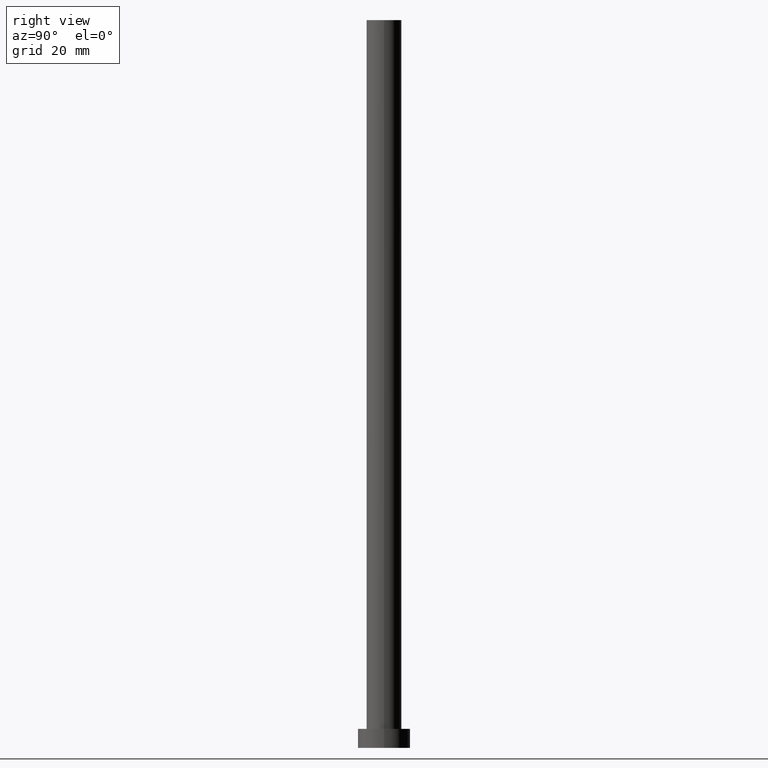
[diagram: clean part render]
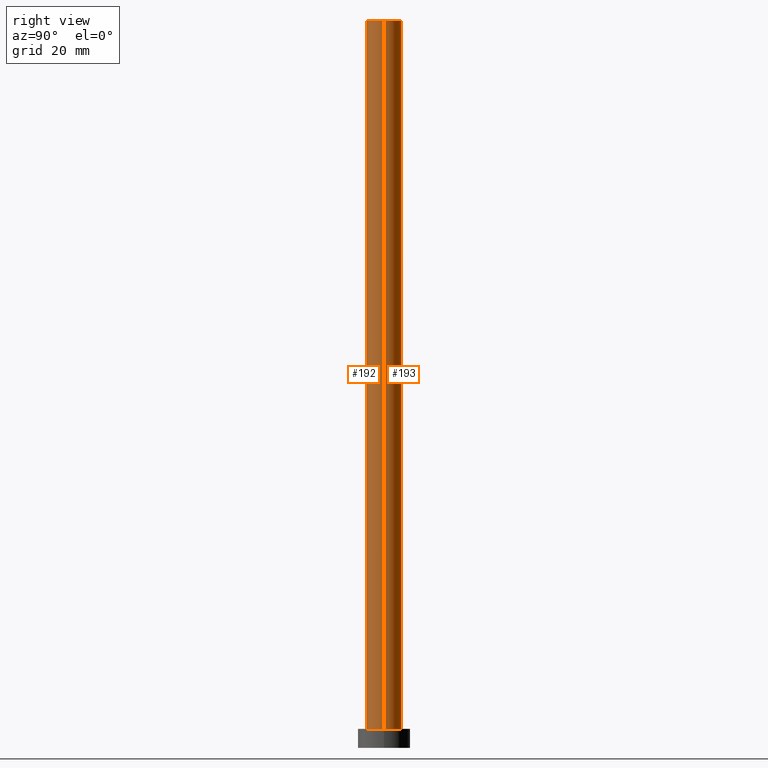
[diagram: same view with one multi-face feature highlighted, each face labeled with its STEP entity id]
A machine part, right view. The highlighted faces form ONE feature: a constant-radius fillet chain: 2 tangent blend faces with common blend radius 6 mm. The faces share edges in the B-rep.
Their STEP definitions:
[1] entity #193 (Cylinder):
#15 = CARTESIAN_POINT ( 'NONE',  ( 0.000000000000000000, 0.000000000000000000, 250.0000000000000000 ) ) ;
#17 = ORIENTED_EDGE ( 'NONE', *, *, #96, .T. ) ;
#22 = CIRCLE ( 'NONE', #196, 6.000000000000000888 ) ;
#35 = FACE_OUTER_BOUND ( 'NONE', #70, .T. ) ;
#37 = LINE ( 'NONE', #195, #112 ) ;
#44 = ORIENTED_EDGE ( 'NONE', *, *, #232, .F. ) ;
#54 = AXIS2_PLACEMENT_3D ( 'NONE', #15, #150, #236 ) ;
#67 = AXIS2_PLACEMENT_3D ( 'NONE', #71, #231, #92 ) ;
#70 = EDGE_LOOP ( 'NONE', ( #44, #219, #17, #168 ) ) ;
#71 = CARTESIAN_POINT ( 'NONE',  ( 0.000000000000000000, 0.000000000000000000, 6.500000000000000000 ) ) ;
#80 = DIRECTION ( 'NONE',  ( 1.000000000000000000, 0.000000000000000000, 0.000000000000000000 ) ) ;
#85 = CARTESIAN_POINT ( 'NONE',  ( 0.000000000000000000, 0.000000000000000000, 250.0000000000000000 ) ) ;
#90 = VERTEX_POINT ( 'NONE', #226 ) ;
#92 = DIRECTION ( 'NONE',  ( 1.000000000000000000, 0.000000000000000000, 0.000000000000000000 ) ) ;
#94 = DIRECTION ( 'NONE',  ( -0.000000000000000000, -0.000000000000000000, -1.000000000000000000 ) ) ;
#96 = EDGE_CURVE ( 'NONE', #225, #90, #179, .T. ) ;
#97 = CARTESIAN_POINT ( 'NONE',  ( 6.000000000000000888, 7.347880794884120722E-16, 6.500000000000000000 ) ) ;
#108 = VERTEX_POINT ( 'NONE', #162 ) ;
#112 = VECTOR ( 'NONE', #94, 1000.000000000000000 ) ;
#113 = CYLINDRICAL_SURFACE ( 'NONE', #54, 6.000000000000000888 ) ;
#150 = DIRECTION ( 'NONE',  ( -0.000000000000000000, -0.000000000000000000, -1.000000000000000000 ) ) ;
#153 = DIRECTION ( 'NONE',  ( 0.000000000000000000, 0.000000000000000000, 1.000000000000000000 ) ) ;
#162 = CARTESIAN_POINT ( 'NONE',  ( -6.000000000000000888, 0.000000000000000000, 250.0000000000000000 ) ) ;
#168 = ORIENTED_EDGE ( 'NONE', *, *, #240, .F. ) ;
#172 = LINE ( 'NONE', #251, #201 ) ;
#179 = CIRCLE ( 'NONE', #67, 6.000000000000000888 ) ;
#183 = EDGE_CURVE ( 'NONE', #241, #225, #172, .T. ) ;
#189 = CARTESIAN_POINT ( 'NONE',  ( 6.000000000000000888, 7.347880794884120722E-16, 250.0000000000000000 ) ) ;
#193 = ADVANCED_FACE ( 'NONE', ( #35 ), #113, .T. ) ;
#195 = CARTESIAN_POINT ( 'NONE',  ( -6.000000000000000888, 0.000000000000000000, 250.0000000000000000 ) ) ;
#196 = AXIS2_PLACEMENT_3D ( 'NONE', #85, #153, #80 ) ;
#201 = VECTOR ( 'NONE', #253, 1000.000000000000000 ) ;
#219 = ORIENTED_EDGE ( 'NONE', *, *, #183, .T. ) ;
#225 = VERTEX_POINT ( 'NONE', #97 ) ;
#226 = CARTESIAN_POINT ( 'NONE',  ( -6.000000000000000888, 0.000000000000000000, 6.500000000000000000 ) ) ;
#231 = DIRECTION ( 'NONE',  ( 0.000000000000000000, 0.000000000000000000, 1.000000000000000000 ) ) ;
#232 = EDGE_CURVE ( 'NONE', #241, #108, #22, .T. ) ;
#236 = DIRECTION ( 'NONE',  ( -1.000000000000000000, 0.000000000000000000, 0.000000000000000000 ) ) ;
#240 = EDGE_CURVE ( 'NONE', #108, #90, #37, .T. ) ;
#241 = VERTEX_POINT ( 'NONE', #189 ) ;
#251 = CARTESIAN_POINT ( 'NONE',  ( 6.000000000000000888, 7.347880794884120722E-16, 250.0000000000000000 ) ) ;
#253 = DIRECTION ( 'NONE',  ( -0.000000000000000000, -0.000000000000000000, -1.000000000000000000 ) ) ;
[2] entity #192 (Cylinder):
#33 = DIRECTION ( 'NONE',  ( -1.000000000000000000, 0.000000000000000000, 0.000000000000000000 ) ) ;
#37 = LINE ( 'NONE', #195, #112 ) ;
#38 = CIRCLE ( 'NONE', #115, 6.000000000000000888 ) ;
#60 = EDGE_CURVE ( 'NONE', #108, #241, #121, .T. ) ;
#77 = DIRECTION ( 'NONE',  ( 1.000000000000000000, 0.000000000000000000, 0.000000000000000000 ) ) ;
#78 = ORIENTED_EDGE ( 'NONE', *, *, #60, .F. ) ;
#84 = DIRECTION ( 'NONE',  ( 1.000000000000000000, 0.000000000000000000, 0.000000000000000000 ) ) ;
#90 = VERTEX_POINT ( 'NONE', #226 ) ;
#94 = DIRECTION ( 'NONE',  ( -0.000000000000000000, -0.000000000000000000, -1.000000000000000000 ) ) ;
#97 = CARTESIAN_POINT ( 'NONE',  ( 6.000000000000000888, 7.347880794884120722E-16, 6.500000000000000000 ) ) ;
#104 = DIRECTION ( 'NONE',  ( 0.000000000000000000, 0.000000000000000000, 1.000000000000000000 ) ) ;
#108 = VERTEX_POINT ( 'NONE', #162 ) ;
#110 = ORIENTED_EDGE ( 'NONE', *, *, #254, .T. ) ;
#112 = VECTOR ( 'NONE', #94, 1000.000000000000000 ) ;
#115 = AXIS2_PLACEMENT_3D ( 'NONE', #191, #173, #84 ) ;
#121 = CIRCLE ( 'NONE', #154, 6.000000000000000888 ) ;
#131 = DIRECTION ( 'NONE',  ( -0.000000000000000000, -0.000000000000000000, -1.000000000000000000 ) ) ;
#133 = AXIS2_PLACEMENT_3D ( 'NONE', #252, #131, #33 ) ;
#134 = EDGE_LOOP ( 'NONE', ( #202, #78, #149, #110 ) ) ;
#149 = ORIENTED_EDGE ( 'NONE', *, *, #240, .T. ) ;
#154 = AXIS2_PLACEMENT_3D ( 'NONE', #207, #104, #77 ) ;
#162 = CARTESIAN_POINT ( 'NONE',  ( -6.000000000000000888, 0.000000000000000000, 250.0000000000000000 ) ) ;
#172 = LINE ( 'NONE', #251, #201 ) ;
#173 = DIRECTION ( 'NONE',  ( 0.000000000000000000, 0.000000000000000000, 1.000000000000000000 ) ) ;
#183 = EDGE_CURVE ( 'NONE', #241, #225, #172, .T. ) ;
#189 = CARTESIAN_POINT ( 'NONE',  ( 6.000000000000000888, 7.347880794884120722E-16, 250.0000000000000000 ) ) ;
#191 = CARTESIAN_POINT ( 'NONE',  ( 0.000000000000000000, 0.000000000000000000, 6.500000000000000000 ) ) ;
#192 = ADVANCED_FACE ( 'NONE', ( #238 ), #218, .T. ) ;
#195 = CARTESIAN_POINT ( 'NONE',  ( -6.000000000000000888, 0.000000000000000000, 250.0000000000000000 ) ) ;
#201 = VECTOR ( 'NONE', #253, 1000.000000000000000 ) ;
#202 = ORIENTED_EDGE ( 'NONE', *, *, #183, .F. ) ;
#207 = CARTESIAN_POINT ( 'NONE',  ( 0.000000000000000000, 0.000000000000000000, 250.0000000000000000 ) ) ;
#218 = CYLINDRICAL_SURFACE ( 'NONE', #133, 6.000000000000000888 ) ;
#225 = VERTEX_POINT ( 'NONE', #97 ) ;
#226 = CARTESIAN_POINT ( 'NONE',  ( -6.000000000000000888, 0.000000000000000000, 6.500000000000000000 ) ) ;
#238 = FACE_OUTER_BOUND ( 'NONE', #134, .T. ) ;
#240 = EDGE_CURVE ( 'NONE', #108, #90, #37, .T. ) ;
#241 = VERTEX_POINT ( 'NONE', #189 ) ;
#251 = CARTESIAN_POINT ( 'NONE',  ( 6.000000000000000888, 7.347880794884120722E-16, 250.0000000000000000 ) ) ;
#252 = CARTESIAN_POINT ( 'NONE',  ( 0.000000000000000000, 0.000000000000000000, 250.0000000000000000 ) ) ;
#253 = DIRECTION ( 'NONE',  ( -0.000000000000000000, -0.000000000000000000, -1.000000000000000000 ) ) ;
#254 = EDGE_CURVE ( 'NONE', #90, #225, #38, .T. ) ;